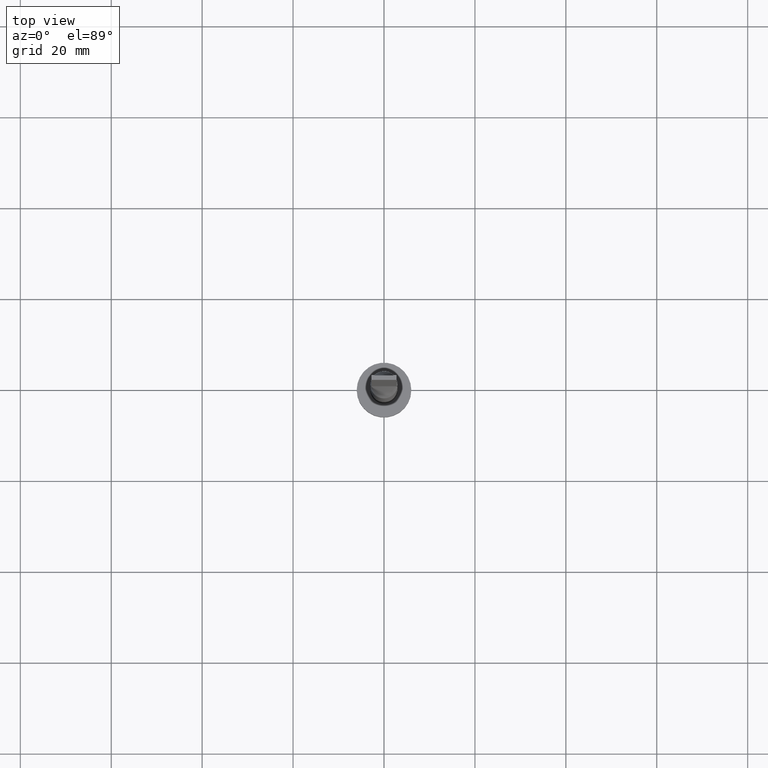
[diagram: clean part render]
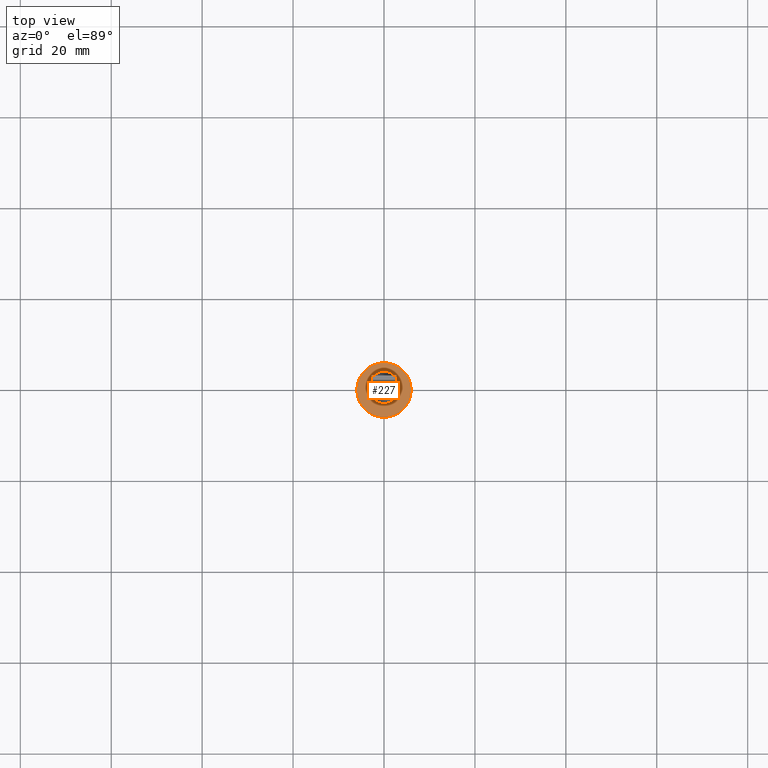
[diagram: same view with one face highlighted and labeled with its STEP entity id]
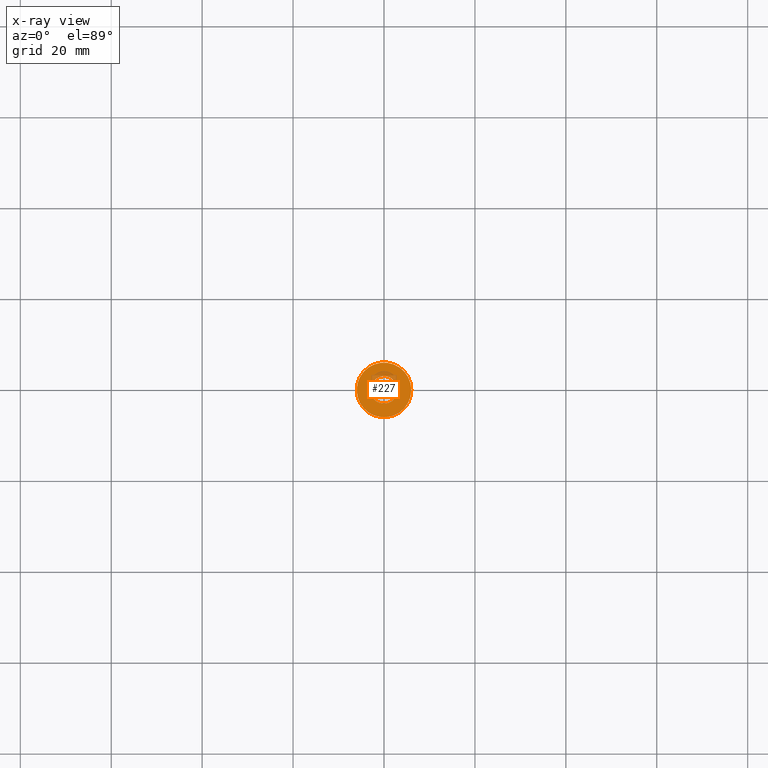
[diagram: x-ray of the same camera — body ghosted, the highlighted face saturated]
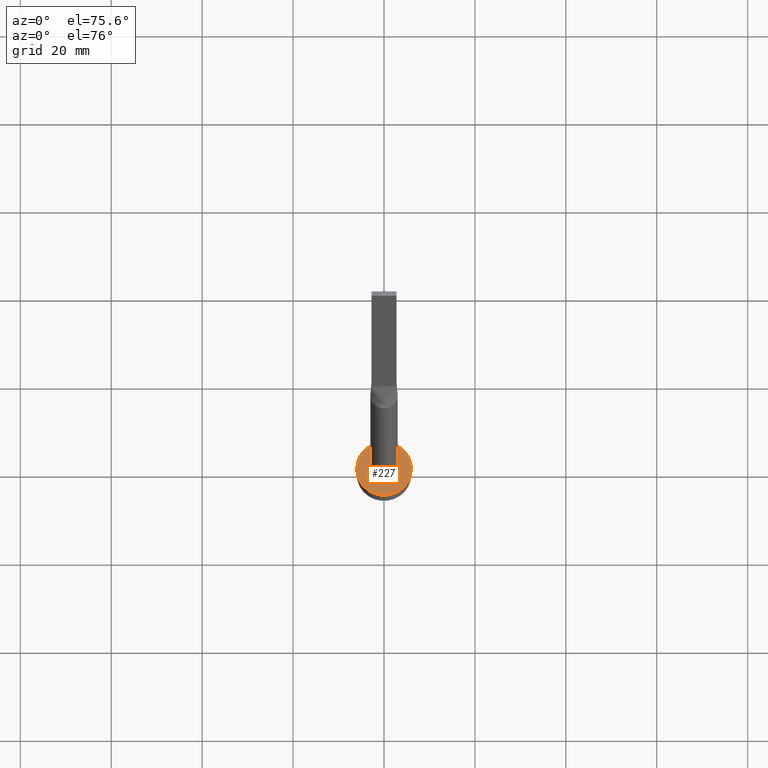
[diagram: same view with one face highlighted and labeled with its STEP entity id]
A machine part, top view. The second image highlights one B-rep face of the part: STEP entity #227.
The next image is the same camera in x-ray: the body ghosted, the highlighted face saturated — about 9% of this face is hidden behind the body in this view.
A second angle (auxiliary view) of the same face is appended — the face is thin or edge-on in the first view.
In plain terms, the highlighted planar face has unit normal (0, 0, 1).
Its self-contained STEP definition (entity closure, byte-faithful):
#28 = CARTESIAN_POINT ( 'NONE',  ( 0.000000000000000000, 0.000000000000000000, 5.000000000000000000 ) ) ;
#36 = AXIS2_PLACEMENT_3D ( 'NONE', #222, #512, #414 ) ;
#60 = EDGE_LOOP ( 'NONE', ( #276, #370 ) ) ;
#112 = DIRECTION ( 'NONE',  ( 1.000000000000000000, 0.000000000000000000, 0.000000000000000000 ) ) ;
#117 = CARTESIAN_POINT ( 'NONE',  ( 0.000000000000000000, 0.000000000000000000, 5.000000000000000000 ) ) ;
#125 = AXIS2_PLACEMENT_3D ( 'NONE', #28, #153, #337 ) ;
#144 = CARTESIAN_POINT ( 'NONE',  ( -3.000000000000000444, 0.000000000000000000, 5.000000000000000000 ) ) ;
#148 = EDGE_LOOP ( 'NONE', ( #411, #442 ) ) ;
#153 = DIRECTION ( 'NONE',  ( 0.000000000000000000, 0.000000000000000000, 1.000000000000000000 ) ) ;
#167 = VERTEX_POINT ( 'NONE', #580 ) ;
#169 = VERTEX_POINT ( 'NONE', #533 ) ;
#180 = CIRCLE ( 'NONE', #36, 3.000000000000000444 ) ;
#198 = CIRCLE ( 'NONE', #125, 6.000000000000000888 ) ;
#222 = CARTESIAN_POINT ( 'NONE',  ( 0.000000000000000000, 0.000000000000000000, 5.000000000000000000 ) ) ;
#227 = ADVANCED_FACE ( 'NONE', ( #513, #563 ), #335, .T. ) ;
#249 = AXIS2_PLACEMENT_3D ( 'NONE', #385, #507, #112 ) ;
#269 = CIRCLE ( 'NONE', #456, 6.000000000000000888 ) ;
#276 = ORIENTED_EDGE ( 'NONE', *, *, #301, .F. ) ;
#291 = DIRECTION ( 'NONE',  ( 0.000000000000000000, 0.000000000000000000, 1.000000000000000000 ) ) ;
#292 = EDGE_CURVE ( 'NONE', #169, #167, #198, .T. ) ;
#301 = EDGE_CURVE ( 'NONE', #520, #377, #542, .T. ) ;
#322 = DIRECTION ( 'NONE',  ( 1.000000000000000000, 0.000000000000000000, 0.000000000000000000 ) ) ;
#329 = CARTESIAN_POINT ( 'NONE',  ( 0.000000000000000000, 0.000000000000000000, 5.000000000000000000 ) ) ;
#335 = PLANE ( 'NONE',  #376 ) ;
#337 = DIRECTION ( 'NONE',  ( 1.000000000000000000, 0.000000000000000000, 0.000000000000000000 ) ) ;
#370 = ORIENTED_EDGE ( 'NONE', *, *, #459, .F. ) ;
#376 = AXIS2_PLACEMENT_3D ( 'NONE', #117, #291, #567 ) ;
#377 = VERTEX_POINT ( 'NONE', #487 ) ;
#385 = CARTESIAN_POINT ( 'NONE',  ( 0.000000000000000000, 0.000000000000000000, 5.000000000000000000 ) ) ;
#411 = ORIENTED_EDGE ( 'NONE', *, *, #461, .T. ) ;
#414 = DIRECTION ( 'NONE',  ( 1.000000000000000000, 0.000000000000000000, 0.000000000000000000 ) ) ;
#416 = DIRECTION ( 'NONE',  ( 0.000000000000000000, 0.000000000000000000, 1.000000000000000000 ) ) ;
#442 = ORIENTED_EDGE ( 'NONE', *, *, #292, .T. ) ;
#456 = AXIS2_PLACEMENT_3D ( 'NONE', #329, #416, #322 ) ;
#459 = EDGE_CURVE ( 'NONE', #377, #520, #180, .T. ) ;
#461 = EDGE_CURVE ( 'NONE', #167, #169, #269, .T. ) ;
#487 = CARTESIAN_POINT ( 'NONE',  ( 3.000000000000000444, 3.673940397442060361E-16, 5.000000000000000000 ) ) ;
#507 = DIRECTION ( 'NONE',  ( 0.000000000000000000, 0.000000000000000000, 1.000000000000000000 ) ) ;
#512 = DIRECTION ( 'NONE',  ( 0.000000000000000000, 0.000000000000000000, 1.000000000000000000 ) ) ;
#513 = FACE_BOUND ( 'NONE', #60, .T. ) ;
#520 = VERTEX_POINT ( 'NONE', #144 ) ;
#533 = CARTESIAN_POINT ( 'NONE',  ( 6.000000000000000888, 7.347880794884120722E-16, 5.000000000000000000 ) ) ;
#542 = CIRCLE ( 'NONE', #249, 3.000000000000000444 ) ;
#563 = FACE_OUTER_BOUND ( 'NONE', #148, .T. ) ;
#567 = DIRECTION ( 'NONE',  ( 1.000000000000000000, 0.000000000000000000, -0.000000000000000000 ) ) ;
#580 = CARTESIAN_POINT ( 'NONE',  ( -6.000000000000000888, 0.000000000000000000, 5.000000000000000000 ) ) ;